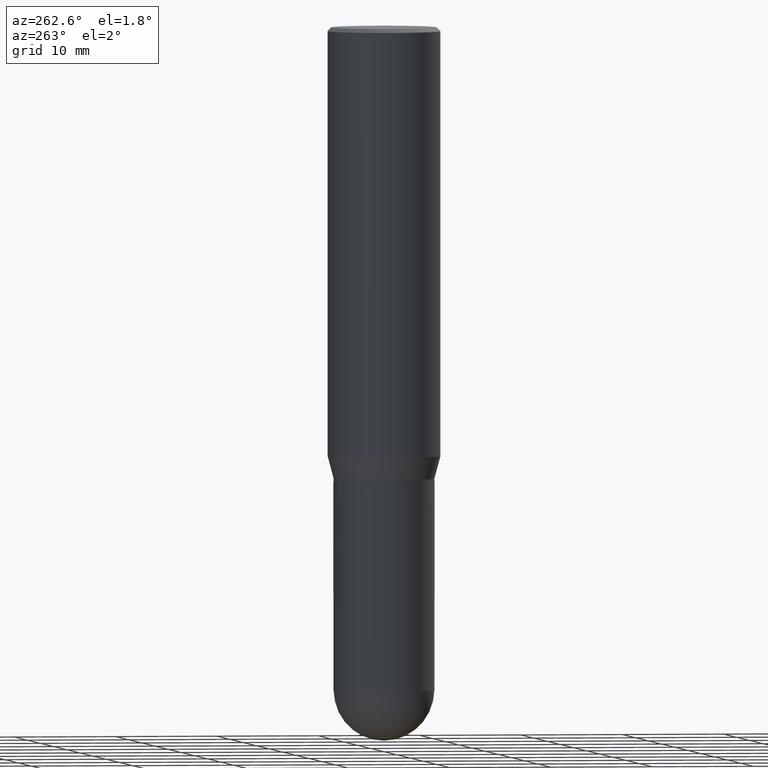
[diagram: clean part render]
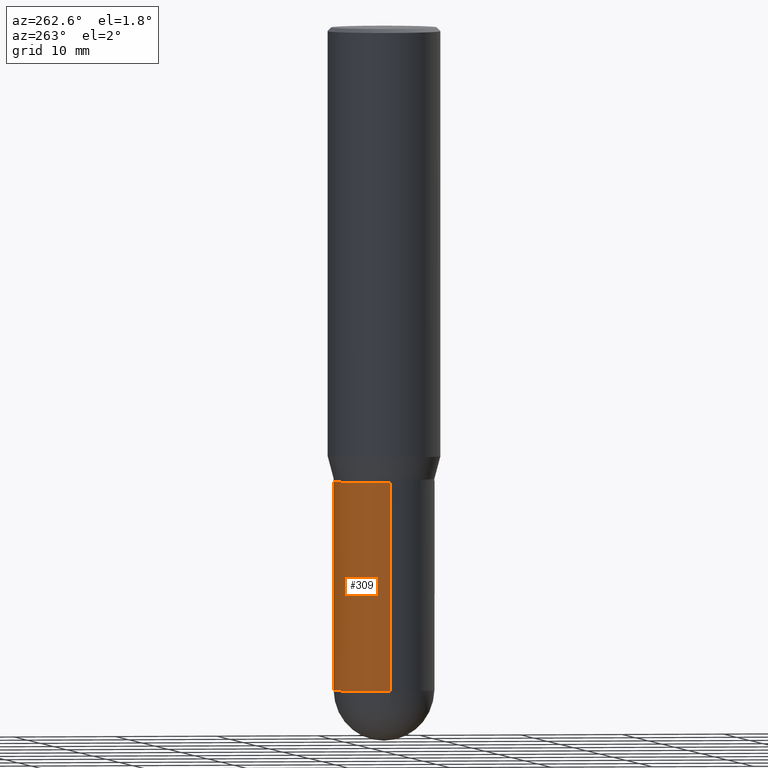
[diagram: same view with one face highlighted and labeled with its STEP entity id]
A machine part, auxiliary view. The second image highlights one B-rep face of the part: STEP entity #309.
In plain terms, the highlighted cylindrical surface (partial cylindrical patch) has radius 4.9606 mm, axis along (-0, 0, 1).
Its self-contained STEP definition (entity closure, byte-faithful):
#9 = CARTESIAN_POINT ( 'NONE',  ( 4.279570410823988484E-29, -6.110092342975504671E-15, -1.750000000000000000 ) ) ;
#12 = LINE ( 'NONE', #368, #93 ) ;
#23 = CARTESIAN_POINT ( 'NONE',  ( -0.1953000000000000291, -6.127199896719567549E-15, -1.750000000000000000 ) ) ;
#30 = FACE_OUTER_BOUND ( 'NONE', #284, .T. ) ;
#32 = CIRCLE ( 'NONE', #396, 0.1953000000000000569 ) ;
#39 = EDGE_CURVE ( 'NONE', #480, #177, #12, .T. ) ;
#40 = AXIS2_PLACEMENT_3D ( 'NONE', #9, #49, #131 ) ;
#41 = ORIENTED_EDGE ( 'NONE', *, *, #411, .F. ) ;
#49 = DIRECTION ( 'NONE',  ( -2.445468806185136597E-29, 3.491481338843145583E-15, 1.000000000000000000 ) ) ;
#75 = CARTESIAN_POINT ( 'NONE',  ( 0.1953000000000000291, -1.363772610952128089E-15, 9.523173243129463579E-30 ) ) ;
#76 = EDGE_CURVE ( 'NONE', #242, #177, #346, .T. ) ;
#93 = VECTOR ( 'NONE', #261, 39.37007874015748143 ) ;
#111 = CYLINDRICAL_SURFACE ( 'NONE', #434, 0.1953000000000000291 ) ;
#118 = CARTESIAN_POINT ( 'NONE',  ( 6.247439159161168638E-29, -8.919687376342582955E-15, -2.554699999999999971 ) ) ;
#131 = DIRECTION ( 'NONE',  ( 1.000000000000000000, -6.982962677686267499E-15, 0.000000000000000000 ) ) ;
#137 = VERTEX_POINT ( 'NONE', #375 ) ;
#166 = DIRECTION ( 'NONE',  ( -2.445468806185136877E-29, 3.491481338843145188E-15, 1.000000000000000000 ) ) ;
#171 = AXIS2_PLACEMENT_3D ( 'NONE', #420, #448, #270 ) ;
#172 = ORIENTED_EDGE ( 'NONE', *, *, #483, .T. ) ;
#177 = VERTEX_POINT ( 'NONE', #23 ) ;
#198 = DIRECTION ( 'NONE',  ( -2.445468806185136597E-29, 3.491481338843145583E-15, 1.000000000000000000 ) ) ;
#203 = DIRECTION ( 'NONE',  ( 1.000000000000000000, -6.982962677686266711E-15, 0.000000000000000000 ) ) ;
#206 = EDGE_CURVE ( 'NONE', #137, #221, #310, .T. ) ;
#221 = VERTEX_POINT ( 'NONE', #307 ) ;
#242 = VERTEX_POINT ( 'NONE', #416 ) ;
#252 = LINE ( 'NONE', #75, #345 ) ;
#261 = DIRECTION ( 'NONE',  ( -2.445468806185136877E-29, 3.491481338843145188E-15, 1.000000000000000000 ) ) ;
#270 = DIRECTION ( 'NONE',  ( 1.000000000000000000, -6.982962677686266711E-15, 0.000000000000000000 ) ) ;
#284 = EDGE_LOOP ( 'NONE', ( #172, #285, #491, #41, #372 ) ) ;
#285 = ORIENTED_EDGE ( 'NONE', *, *, #39, .T. ) ;
#307 = CARTESIAN_POINT ( 'NONE',  ( 1.363772610952190606E-15, 0.1952999999999911473, -2.554700000000000415 ) ) ;
#309 = ADVANCED_FACE ( 'NONE', ( #30 ), #111, .T. ) ;
#310 = CIRCLE ( 'NONE', #171, 0.1953000000000000569 ) ;
#313 = DIRECTION ( 'NONE',  ( -2.445468806185136597E-29, 3.491481338843145583E-15, 1.000000000000000000 ) ) ;
#345 = VECTOR ( 'NONE', #166, 39.37007874015748143 ) ;
#346 = CIRCLE ( 'NONE', #40, 0.1953000000000000291 ) ;
#347 = DIRECTION ( 'NONE',  ( 1.000000000000000000, -6.982962677686266711E-15, 4.876176775795935793E-29 ) ) ;
#368 = CARTESIAN_POINT ( 'NONE',  ( -0.1953000000000000291, 1.387689962939475870E-15, -9.606680231267831797E-30 ) ) ;
#372 = ORIENTED_EDGE ( 'NONE', *, *, #206, .T. ) ;
#375 = CARTESIAN_POINT ( 'NONE',  ( 0.1953000000000000569, -8.878662470611173282E-15, -2.554699999999999971 ) ) ;
#396 = AXIS2_PLACEMENT_3D ( 'NONE', #118, #313, #203 ) ;
#411 = EDGE_CURVE ( 'NONE', #137, #242, #252, .T. ) ;
#416 = CARTESIAN_POINT ( 'NONE',  ( 0.1953000000000000291, -7.473864953927632957E-15, -1.750000000000000000 ) ) ;
#420 = CARTESIAN_POINT ( 'NONE',  ( 6.247439159161168638E-29, -8.919687376342582955E-15, -2.554699999999999971 ) ) ;
#426 = CARTESIAN_POINT ( 'NONE',  ( 0.000000000000000000, 0.000000000000000000, 0.000000000000000000 ) ) ;
#434 = AXIS2_PLACEMENT_3D ( 'NONE', #426, #198, #347 ) ;
#448 = DIRECTION ( 'NONE',  ( -2.445468806185136597E-29, 3.491481338843145583E-15, 1.000000000000000000 ) ) ;
#467 = CARTESIAN_POINT ( 'NONE',  ( -0.1953000000000000569, -6.127199896719566760E-15, -2.554699999999999971 ) ) ;
#480 = VERTEX_POINT ( 'NONE', #467 ) ;
#483 = EDGE_CURVE ( 'NONE', #221, #480, #32, .T. ) ;
#491 = ORIENTED_EDGE ( 'NONE', *, *, #76, .F. ) ;